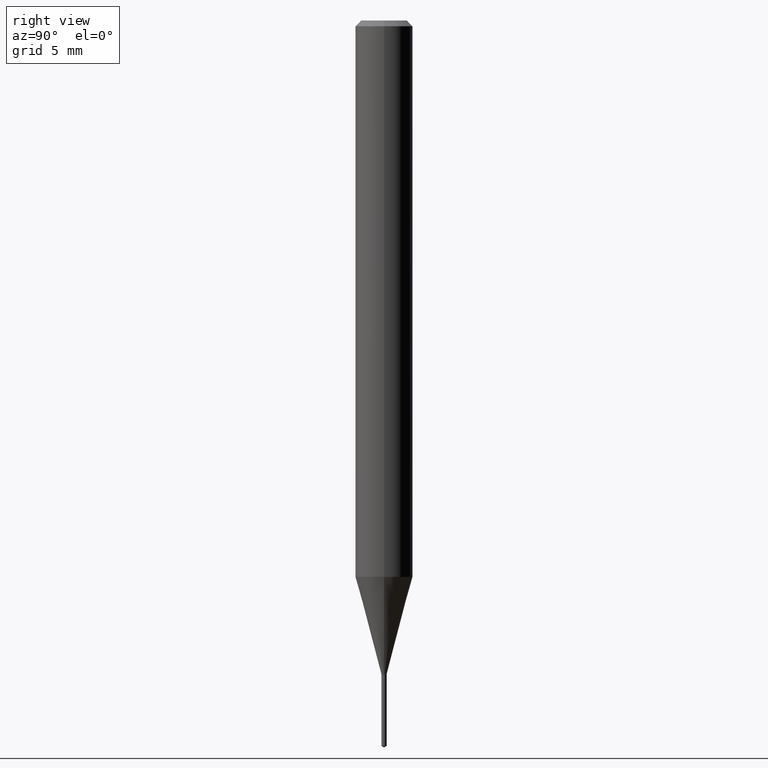
[diagram: clean part render]
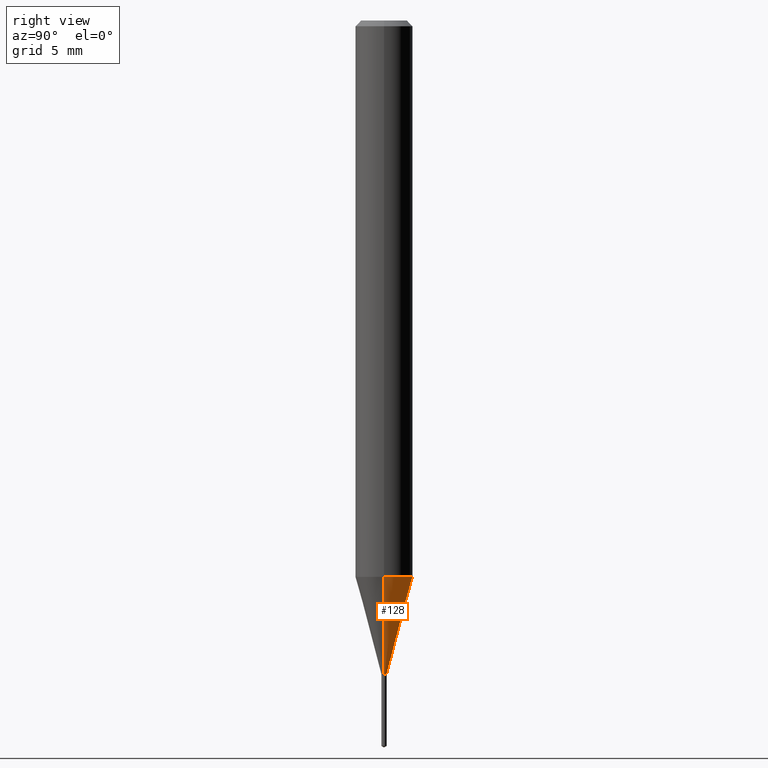
[diagram: same view with one face highlighted and labeled with its STEP entity id]
A machine part, right view. The second image highlights one B-rep face of the part: STEP entity #128.
In plain terms, the highlighted conical surface has half-angle 15 deg.
Its self-contained STEP definition (entity closure, byte-faithful):
#8 = EDGE_CURVE ( 'NONE', #162, #111, #284, .T. ) ;
#33 = AXIS2_PLACEMENT_3D ( 'NONE', #150, #490, #108 ) ;
#34 = DIRECTION ( 'NONE',  ( -2.445468806185136597E-29, 3.491481338843145583E-15, 1.000000000000000000 ) ) ;
#54 = CIRCLE ( 'NONE', #33, 0.005499999999999999681 ) ;
#68 = DIRECTION ( 'NONE',  ( 1.000000000000000000, -6.982962677686245411E-15, 0.000000000000000000 ) ) ;
#71 = VECTOR ( 'NONE', #424, 39.37007874015748854 ) ;
#85 = CARTESIAN_POINT ( 'NONE',  ( -0.005499999999999999681, -4.658359142812762824E-15, -1.344799999999999773 ) ) ;
#86 = EDGE_LOOP ( 'NONE', ( #362, #359, #119, #431 ) ) ;
#100 = FACE_OUTER_BOUND ( 'NONE', #86, .T. ) ;
#105 = CARTESIAN_POINT ( 'NONE',  ( -0.005499999999999999681, -4.656264254009456230E-15, -1.344799999999999773 ) ) ;
#108 = DIRECTION ( 'NONE',  ( 1.000000000000000000, -6.982962677686245411E-15, 0.000000000000000000 ) ) ;
#111 = VERTEX_POINT ( 'NONE', #402 ) ;
#114 = DIRECTION ( 'NONE',  ( -0.2588190451025211836, 5.211531920934547886E-15, 0.9659258262890679791 ) ) ;
#119 = ORIENTED_EDGE ( 'NONE', *, *, #8, .F. ) ;
#128 = ADVANCED_FACE ( 'NONE', ( #100 ), #172, .T. ) ;
#150 = CARTESIAN_POINT ( 'NONE',  ( 3.288666450557771176E-29, -4.695344104476262170E-15, -1.344799999999999773 ) ) ;
#155 = VECTOR ( 'NONE', #114, 39.37007874015748854 ) ;
#159 = EDGE_CURVE ( 'NONE', #331, #111, #451, .T. ) ;
#162 = VERTEX_POINT ( 'NONE', #264 ) ;
#172 = CONICAL_SURFACE ( 'NONE', #448, 0.005499999999999999681, 0.2617993877991499074 ) ;
#174 = DIRECTION ( 'NONE',  ( -2.445468806185136597E-29, 3.491481338843145583E-15, 1.000000000000000000 ) ) ;
#188 = EDGE_CURVE ( 'NONE', #279, #331, #54, .T. ) ;
#252 = CARTESIAN_POINT ( 'NONE',  ( 3.288666450557771176E-29, -4.695344104476262170E-15, -1.344799999999999773 ) ) ;
#259 = EDGE_CURVE ( 'NONE', #279, #162, #427, .T. ) ;
#260 = AXIS2_PLACEMENT_3D ( 'NONE', #404, #174, #476 ) ;
#264 = CARTESIAN_POINT ( 'NONE',  ( 0.05905000000000014404, -4.409910893668218732E-15, -1.144948679254686352 ) ) ;
#279 = VERTEX_POINT ( 'NONE', #312 ) ;
#284 = CIRCLE ( 'NONE', #260, 0.05905000000000014404 ) ;
#312 = CARTESIAN_POINT ( 'NONE',  ( 0.005499999999999999681, -4.733750399203536037E-15, -1.344799999999999773 ) ) ;
#331 = VERTEX_POINT ( 'NONE', #85 ) ;
#359 = ORIENTED_EDGE ( 'NONE', *, *, #159, .T. ) ;
#362 = ORIENTED_EDGE ( 'NONE', *, *, #188, .T. ) ;
#402 = CARTESIAN_POINT ( 'NONE',  ( -0.05905000000000014404, -3.577991462084503530E-15, -1.144948679254686352 ) ) ;
#404 = CARTESIAN_POINT ( 'NONE',  ( 2.799936279800206478E-29, -3.997566947550843811E-15, -1.144948679254686352 ) ) ;
#424 = DIRECTION ( 'NONE',  ( 0.2588190451025211836, 1.565188264969622559E-15, 0.9659258262890679791 ) ) ;
#427 = LINE ( 'NONE', #468, #71 ) ;
#431 = ORIENTED_EDGE ( 'NONE', *, *, #259, .F. ) ;
#448 = AXIS2_PLACEMENT_3D ( 'NONE', #252, #34, #68 ) ;
#451 = LINE ( 'NONE', #105, #155 ) ;
#468 = CARTESIAN_POINT ( 'NONE',  ( 0.005499999999999999681, -4.733750399203536037E-15, -1.344799999999999773 ) ) ;
#476 = DIRECTION ( 'NONE',  ( 1.000000000000000000, -6.982962677686263555E-15, 0.000000000000000000 ) ) ;
#490 = DIRECTION ( 'NONE',  ( -2.445468806185136597E-29, 3.491481338843145583E-15, 1.000000000000000000 ) ) ;